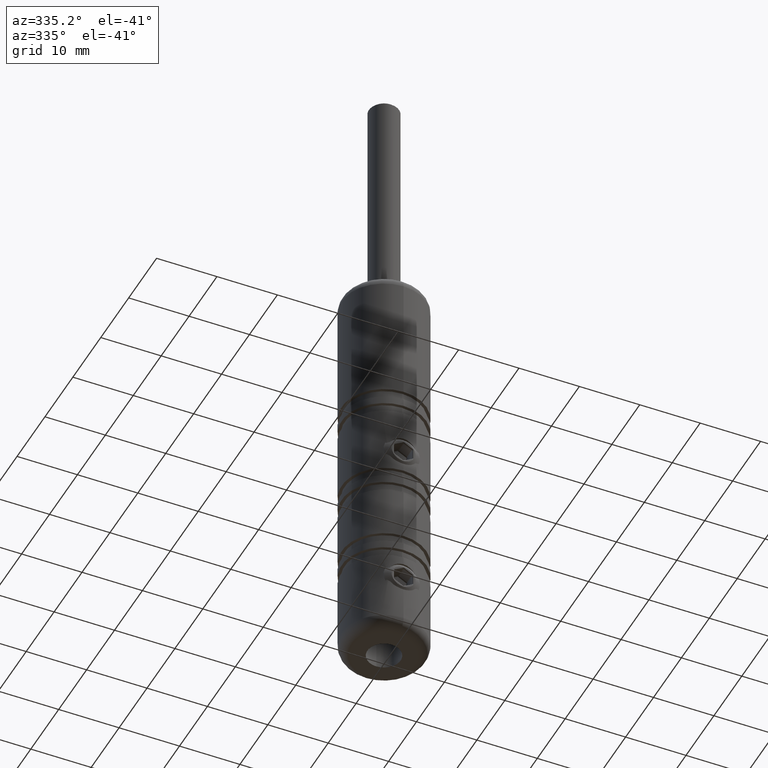
[diagram: clean part render]
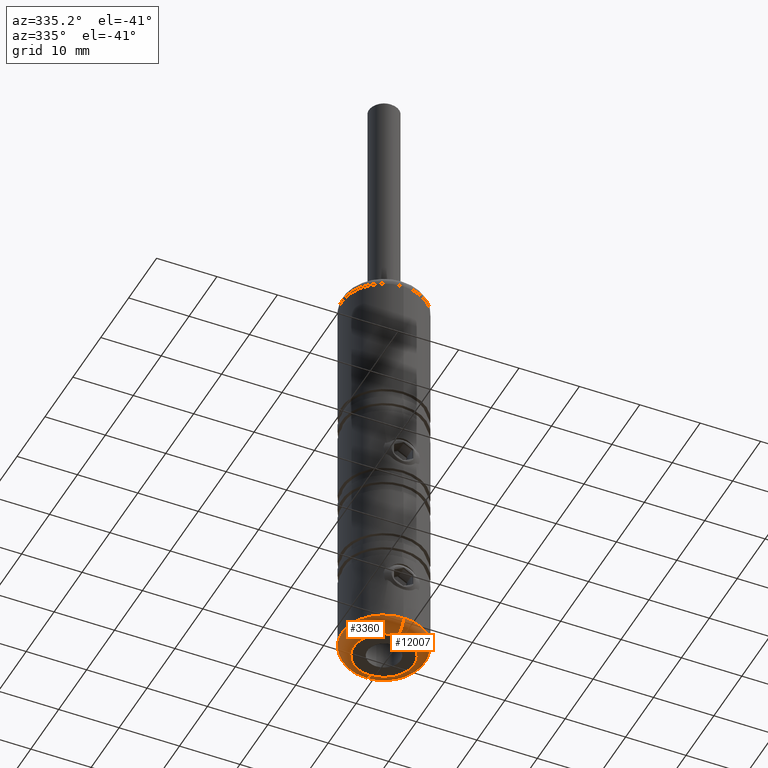
[diagram: same view with one multi-face feature highlighted, each face labeled with its STEP entity id]
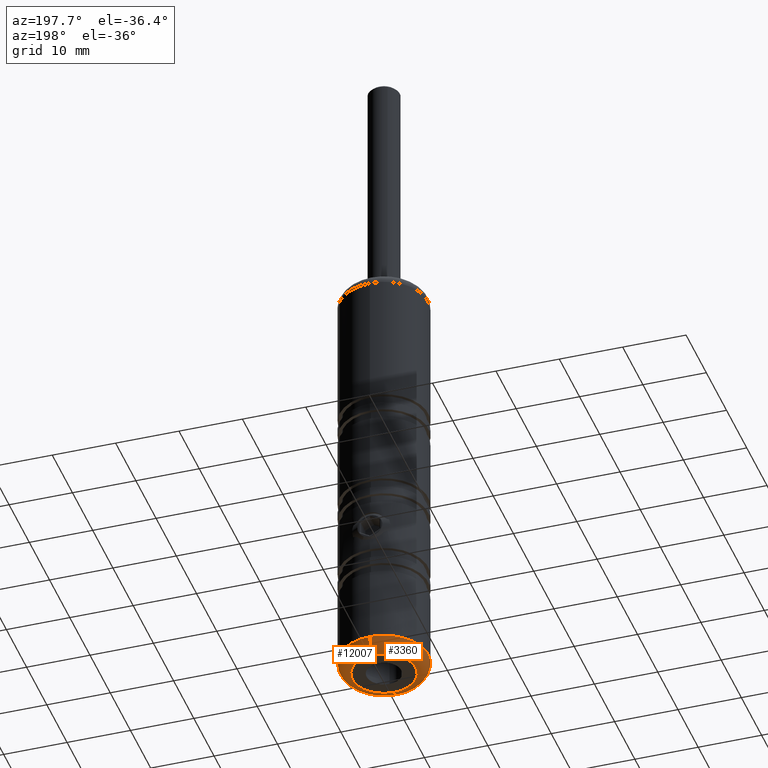
[diagram: same view with one multi-face feature highlighted, each face labeled with its STEP entity id]
A machine part, auxiliary view. The highlighted faces form ONE feature: a constant-radius fillet chain: 2 tangent blend faces with common blend radius 2 mm. The faces share edges in the B-rep.
A second angle (auxiliary view) of the same feature is appended — it is thin or edge-on in the first view.
Their STEP definitions:
[1] entity #12007 (Torus):
#231 = ORIENTED_EDGE ( 'NONE', *, *, #3098, .F. ) ;
#739 = AXIS2_PLACEMENT_3D ( 'NONE', #16344, #9641, #2323 ) ;
#1025 = EDGE_LOOP ( 'NONE', ( #1754, #10316, #231, #11376 ) ) ;
#1336 = FACE_OUTER_BOUND ( 'NONE', #1025, .T. ) ;
#1417 = CARTESIAN_POINT ( 'NONE',  ( 0.0000000000000000000, -4.999999999999996400, -33.00000000000000000 ) ) ;
#1754 = ORIENTED_EDGE ( 'NONE', *, *, #8342, .F. ) ;
#2323 = DIRECTION ( 'NONE',  ( 0.0000000000000000000, -1.000000000000000000, 0.0000000000000000000 ) ) ;
#2549 = CARTESIAN_POINT ( 'NONE',  ( 0.0000000000000000000, -4.071217018603719000E-015, -33.00000000000000000 ) ) ;
#2563 = TOROIDAL_SURFACE ( 'NONE', #3667, 4.999999999999992000, 2.000000000000000000 ) ;
#2616 = DIRECTION ( 'NONE',  ( -1.000000000000000000, -0.0000000000000000000, 0.0000000000000000000 ) ) ;
#3048 = CIRCLE ( 'NONE', #739, 4.999999999999992000 ) ;
#3098 = EDGE_CURVE ( 'NONE', #8649, #4885, #13471, .T. ) ;
#3667 = AXIS2_PLACEMENT_3D ( 'NONE', #12875, #6262, #7727 ) ;
#4885 = VERTEX_POINT ( 'NONE', #10490 ) ;
#6262 = DIRECTION ( 'NONE',  ( -0.0000000000000000000, 5.987083850887820200E-017, 1.000000000000000000 ) ) ;
#6576 = DIRECTION ( 'NONE',  ( 0.0000000000000000000, 0.0000000000000000000, 1.000000000000000000 ) ) ;
#6887 = AXIS2_PLACEMENT_3D ( 'NONE', #2549, #8896, #11649 ) ;
#7103 = CIRCLE ( 'NONE', #14566, 2.000000000000001800 ) ;
#7727 = DIRECTION ( 'NONE',  ( 0.0000000000000000000, -1.000000000000000000, 5.987083850887820200E-017 ) ) ;
#7860 = CARTESIAN_POINT ( 'NONE',  ( 0.0000000000000000000, -4.999999999999996400, -35.00000000000000000 ) ) ;
#8342 = EDGE_CURVE ( 'NONE', #12723, #16071, #3048, .T. ) ;
#8649 = VERTEX_POINT ( 'NONE', #13110 ) ;
#8896 = DIRECTION ( 'NONE',  ( -0.0000000000000000000, 5.987083850887820200E-017, 1.000000000000000000 ) ) ;
#9641 = DIRECTION ( 'NONE',  ( 0.0000000000000000000, -5.987083850887820200E-017, -1.000000000000000000 ) ) ;
#9759 = AXIS2_PLACEMENT_3D ( 'NONE', #13928, #12602, #16512 ) ;
#10316 = ORIENTED_EDGE ( 'NONE', *, *, #13029, .T. ) ;
#10490 = CARTESIAN_POINT ( 'NONE',  ( 8.572527594031463300E-016, 6.999999999999987600, -33.00000000000000000 ) ) ;
#10963 = EDGE_CURVE ( 'NONE', #16071, #8649, #7103, .T. ) ;
#11376 = ORIENTED_EDGE ( 'NONE', *, *, #10963, .F. ) ;
#11649 = DIRECTION ( 'NONE',  ( 0.0000000000000000000, -1.000000000000000000, 0.0000000000000000000 ) ) ;
#12007 = ADVANCED_FACE ( 'NONE', ( #1336 ), #2563, .T. ) ;
#12602 = DIRECTION ( 'NONE',  ( 1.000000000000000000, -1.224646799147353200E-016, 7.332063074216577800E-033 ) ) ;
#12723 = VERTEX_POINT ( 'NONE', #12747 ) ;
#12747 = CARTESIAN_POINT ( 'NONE',  ( 7.347880794884109900E-016, 4.999999999999987600, -35.00000000000000000 ) ) ;
#12875 = CARTESIAN_POINT ( 'NONE',  ( 0.0000000000000000000, -4.071217018603719000E-015, -33.00000000000000000 ) ) ;
#13029 = EDGE_CURVE ( 'NONE', #12723, #4885, #15976, .T. ) ;
#13110 = CARTESIAN_POINT ( 'NONE',  ( 0.0000000000000000000, -6.999999999999996400, -33.00000000000000000 ) ) ;
#13471 = CIRCLE ( 'NONE', #6887, 6.999999999999992000 ) ;
#13928 = CARTESIAN_POINT ( 'NONE',  ( 6.123233995736756400E-016, 4.999999999999987600, -33.00000000000000000 ) ) ;
#14566 = AXIS2_PLACEMENT_3D ( 'NONE', #1417, #2616, #6576 ) ;
#15976 = CIRCLE ( 'NONE', #9759, 2.000000000000000000 ) ;
#16071 = VERTEX_POINT ( 'NONE', #7860 ) ;
#16344 = CARTESIAN_POINT ( 'NONE',  ( 0.0000000000000000000, -4.190958695621474900E-015, -35.00000000000000000 ) ) ;
#16512 = DIRECTION ( 'NONE',  ( 1.224646799147353500E-016, 1.000000000000000000, 0.0000000000000000000 ) ) ;
[2] entity #3360 (Torus):
#715 = ORIENTED_EDGE ( 'NONE', *, *, #3216, .F. ) ;
#857 = ORIENTED_EDGE ( 'NONE', *, *, #10963, .T. ) ;
#1417 = CARTESIAN_POINT ( 'NONE',  ( 0.0000000000000000000, -4.999999999999996400, -33.00000000000000000 ) ) ;
#1542 = ORIENTED_EDGE ( 'NONE', *, *, #13029, .F. ) ;
#2553 = AXIS2_PLACEMENT_3D ( 'NONE', #7758, #16859, #10345 ) ;
#2616 = DIRECTION ( 'NONE',  ( -1.000000000000000000, -0.0000000000000000000, 0.0000000000000000000 ) ) ;
#2878 = AXIS2_PLACEMENT_3D ( 'NONE', #6581, #10524, #13195 ) ;
#3216 = EDGE_CURVE ( 'NONE', #4885, #8649, #3504, .T. ) ;
#3360 = ADVANCED_FACE ( 'NONE', ( #8969 ), #4536, .T. ) ;
#3504 = CIRCLE ( 'NONE', #2878, 6.999999999999992000 ) ;
#4536 = TOROIDAL_SURFACE ( 'NONE', #2553, 4.999999999999992000, 2.000000000000000000 ) ;
#4885 = VERTEX_POINT ( 'NONE', #10490 ) ;
#6576 = DIRECTION ( 'NONE',  ( 0.0000000000000000000, 0.0000000000000000000, 1.000000000000000000 ) ) ;
#6581 = CARTESIAN_POINT ( 'NONE',  ( 0.0000000000000000000, -4.071217018603719000E-015, -33.00000000000000000 ) ) ;
#7103 = CIRCLE ( 'NONE', #14566, 2.000000000000001800 ) ;
#7196 = DIRECTION ( 'NONE',  ( 0.0000000000000000000, -5.987083850887820200E-017, -1.000000000000000000 ) ) ;
#7758 = CARTESIAN_POINT ( 'NONE',  ( 0.0000000000000000000, -4.071217018603719000E-015, -33.00000000000000000 ) ) ;
#7852 = EDGE_LOOP ( 'NONE', ( #1542, #12494, #857, #715 ) ) ;
#7860 = CARTESIAN_POINT ( 'NONE',  ( 0.0000000000000000000, -4.999999999999996400, -35.00000000000000000 ) ) ;
#7936 = CIRCLE ( 'NONE', #16246, 4.999999999999992000 ) ;
#8553 = CARTESIAN_POINT ( 'NONE',  ( 0.0000000000000000000, -4.190958695621474900E-015, -35.00000000000000000 ) ) ;
#8649 = VERTEX_POINT ( 'NONE', #13110 ) ;
#8969 = FACE_OUTER_BOUND ( 'NONE', #7852, .T. ) ;
#9759 = AXIS2_PLACEMENT_3D ( 'NONE', #13928, #12602, #16512 ) ;
#10345 = DIRECTION ( 'NONE',  ( 0.0000000000000000000, -1.000000000000000000, 5.987083850887820200E-017 ) ) ;
#10490 = CARTESIAN_POINT ( 'NONE',  ( 8.572527594031463300E-016, 6.999999999999987600, -33.00000000000000000 ) ) ;
#10524 = DIRECTION ( 'NONE',  ( -0.0000000000000000000, 5.987083850887820200E-017, 1.000000000000000000 ) ) ;
#10963 = EDGE_CURVE ( 'NONE', #16071, #8649, #7103, .T. ) ;
#12494 = ORIENTED_EDGE ( 'NONE', *, *, #16471, .F. ) ;
#12602 = DIRECTION ( 'NONE',  ( 1.000000000000000000, -1.224646799147353200E-016, 7.332063074216577800E-033 ) ) ;
#12723 = VERTEX_POINT ( 'NONE', #12747 ) ;
#12747 = CARTESIAN_POINT ( 'NONE',  ( 7.347880794884109900E-016, 4.999999999999987600, -35.00000000000000000 ) ) ;
#13029 = EDGE_CURVE ( 'NONE', #12723, #4885, #15976, .T. ) ;
#13110 = CARTESIAN_POINT ( 'NONE',  ( 0.0000000000000000000, -6.999999999999996400, -33.00000000000000000 ) ) ;
#13195 = DIRECTION ( 'NONE',  ( 0.0000000000000000000, -1.000000000000000000, 0.0000000000000000000 ) ) ;
#13654 = DIRECTION ( 'NONE',  ( 0.0000000000000000000, -1.000000000000000000, 0.0000000000000000000 ) ) ;
#13928 = CARTESIAN_POINT ( 'NONE',  ( 6.123233995736756400E-016, 4.999999999999987600, -33.00000000000000000 ) ) ;
#14566 = AXIS2_PLACEMENT_3D ( 'NONE', #1417, #2616, #6576 ) ;
#15976 = CIRCLE ( 'NONE', #9759, 2.000000000000000000 ) ;
#16071 = VERTEX_POINT ( 'NONE', #7860 ) ;
#16246 = AXIS2_PLACEMENT_3D ( 'NONE', #8553, #7196, #13654 ) ;
#16471 = EDGE_CURVE ( 'NONE', #16071, #12723, #7936, .T. ) ;
#16512 = DIRECTION ( 'NONE',  ( 1.224646799147353500E-016, 1.000000000000000000, 0.0000000000000000000 ) ) ;
#16859 = DIRECTION ( 'NONE',  ( -0.0000000000000000000, 5.987083850887820200E-017, 1.000000000000000000 ) ) ;